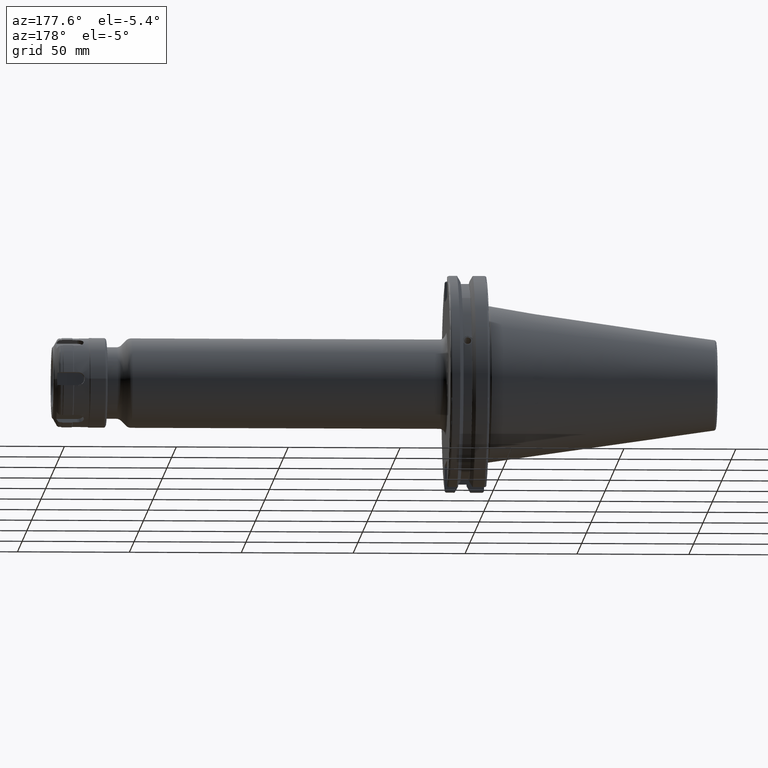
[diagram: clean part render]
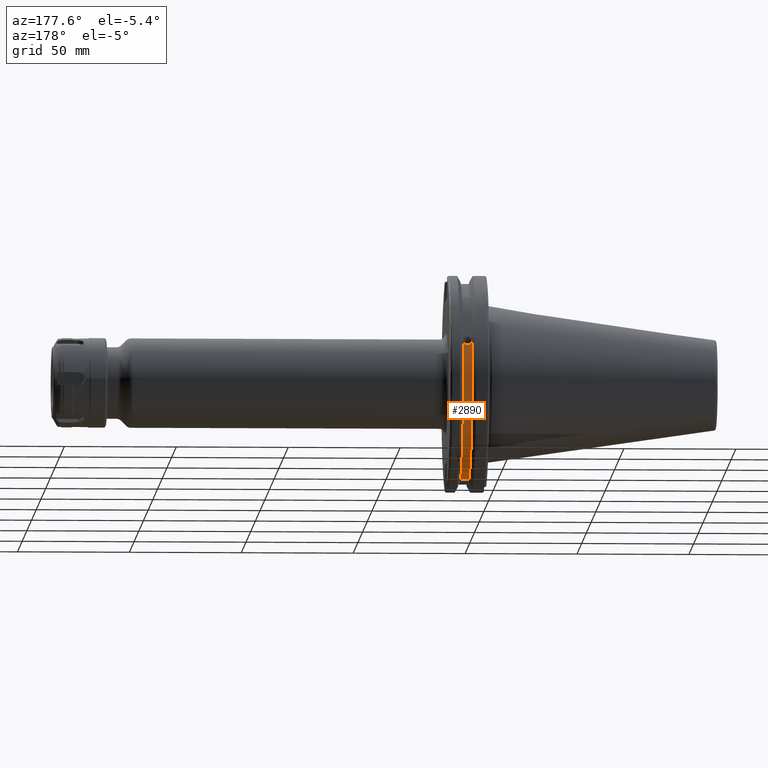
[diagram: same view with one face highlighted and labeled with its STEP entity id]
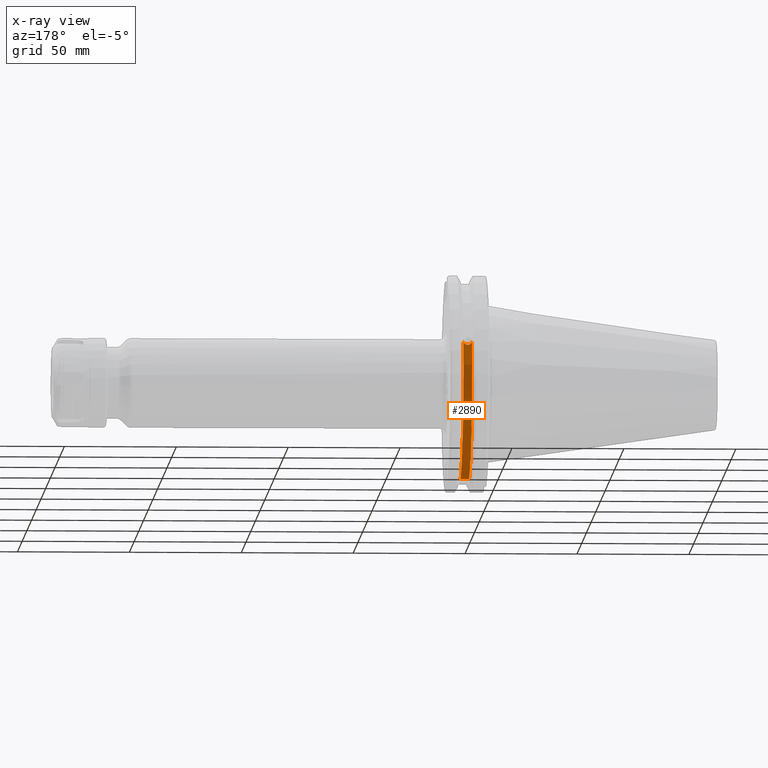
[diagram: x-ray of the same camera — body ghosted, the highlighted face saturated]
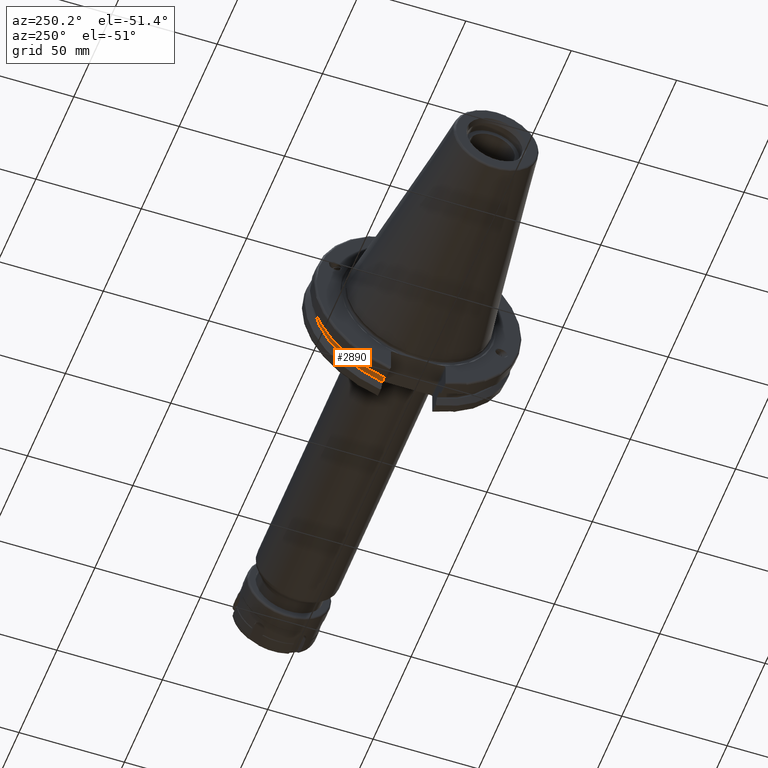
[diagram: same view with one face highlighted and labeled with its STEP entity id]
A machine part, auxiliary view. The second image highlights one B-rep face of the part: STEP entity #2890.
The next image is the same camera in x-ray: the body ghosted, the highlighted face saturated — about 0% of this face is hidden behind the body in this view.
A second angle (auxiliary view) of the same face is appended — the face is thin or edge-on in the first view.
In plain terms, the highlighted cylindrical surface (partial cylindrical patch) has radius 45.6435 mm, axis along (1, 0, 0).
Its self-contained STEP definition (entity closure, byte-faithful):
#86=B_SPLINE_CURVE_WITH_KNOTS('',3,(#4848,#4849,#4850,#4851,#4852,#4853,
#4854,#4855,#4856,#4857,#4858,#4859,#4860,#4861),.UNSPECIFIED.,.F.,.F.,
(4,2,2,2,2,2,4),(0.401548312576693,0.474697095495631,0.553813286063442,
0.632929476631254,0.712045667199066,0.791161857766877,0.864310640685816),
 .UNSPECIFIED.);
#142=CYLINDRICAL_SURFACE('',#3180,45.6435);
#218=LINE('',#4937,#414);
#414=VECTOR('',#3668,10.);
#726=FACE_OUTER_BOUND('',#902,.T.);
#902=EDGE_LOOP('',(#2159,#2160,#2161,#2162));
#1095=CIRCLE('',#3179,45.6435);
#1096=CIRCLE('',#3181,45.6435);
#1279=VERTEX_POINT('',#4845);
#1280=VERTEX_POINT('',#4847);
#1292=VERTEX_POINT('',#4931);
#1293=VERTEX_POINT('',#4935);
#1607=EDGE_CURVE('',#1280,#1279,#86,.T.);
#1621=EDGE_CURVE('',#1292,#1280,#1095,.T.);
#1623=EDGE_CURVE('',#1293,#1279,#1096,.T.);
#1624=EDGE_CURVE('',#1293,#1292,#218,.T.);
#2159=ORIENTED_EDGE('',*,*,#1607,.T.);
#2160=ORIENTED_EDGE('',*,*,#1623,.F.);
#2161=ORIENTED_EDGE('',*,*,#1624,.T.);
#2162=ORIENTED_EDGE('',*,*,#1621,.T.);
#2890=ADVANCED_FACE('',(#726),#142,.T.);
#3179=AXIS2_PLACEMENT_3D('',#4932,#3661,#3662);
#3180=AXIS2_PLACEMENT_3D('',#4934,#3664,#3665);
#3181=AXIS2_PLACEMENT_3D('',#4936,#3666,#3667);
#3661=DIRECTION('center_axis',(1.,0.,0.));
#3662=DIRECTION('ref_axis',(0.,0.,-1.));
#3664=DIRECTION('center_axis',(1.,0.,0.));
#3665=DIRECTION('ref_axis',(0.,1.,0.));
#3666=DIRECTION('center_axis',(1.,0.,0.));
#3667=DIRECTION('ref_axis',(0.,0.,-1.));
#3668=DIRECTION('',(-1.,0.,0.));
#4845=CARTESIAN_POINT('',(13.0491,43.1779814500336,14.7983448449669));
#4847=CARTESIAN_POINT('',(9.21910000000001,43.1779814500336,14.7983448449669));
#4848=CARTESIAN_POINT('Ctrl Pts',(9.21910000000001,43.1779814500336,14.7983448449669));
#4849=CARTESIAN_POINT('Ctrl Pts',(9.32532177598177,43.2545173750974,14.5750315766731));
#4850=CARTESIAN_POINT('Ctrl Pts',(9.47680807557666,43.3223492818373,14.3712521044637));
#4851=CARTESIAN_POINT('Ctrl Pts',(9.83560503400179,43.4340904392251,14.0300988117073));
#4852=CARTESIAN_POINT('Ctrl Pts',(10.0717203280543,43.4832903960863,13.8760243976176));
#4853=CARTESIAN_POINT('Ctrl Pts',(10.5891059167872,43.54802519266,13.6715068146718));
#4854=CARTESIAN_POINT('Ctrl Pts',(10.870379364774,43.5636826100883,13.6211104428929));
#4855=CARTESIAN_POINT('Ctrl Pts',(11.397820635226,43.5636826100883,13.6211104428929));
#4856=CARTESIAN_POINT('Ctrl Pts',(11.6790940832128,43.54802519266,13.6715068146718));
#4857=CARTESIAN_POINT('Ctrl Pts',(12.1964796719457,43.4832903960863,13.8760243976176));
#4858=CARTESIAN_POINT('Ctrl Pts',(12.4325949659982,43.4340904392251,14.0300988117073));
#4859=CARTESIAN_POINT('Ctrl Pts',(12.7913919244233,43.3223492818373,14.3712521044637));
#4860=CARTESIAN_POINT('Ctrl Pts',(12.9428782240182,43.2545173750974,14.5750315766731));
#4861=CARTESIAN_POINT('Ctrl Pts',(13.0491,43.1779814500336,14.7983448449669));
#4931=CARTESIAN_POINT('',(9.2191,12.95,-43.7678716897452));
#4932=CARTESIAN_POINT('Origin',(9.2191,0.,0.));
#4934=CARTESIAN_POINT('Origin',(11.1341,0.,0.));
#4935=CARTESIAN_POINT('',(13.0491,12.95,-43.7678716897452));
#4936=CARTESIAN_POINT('Origin',(13.0491,0.,0.));
#4937=CARTESIAN_POINT('',(11.1341,12.95,-43.7678716897452));